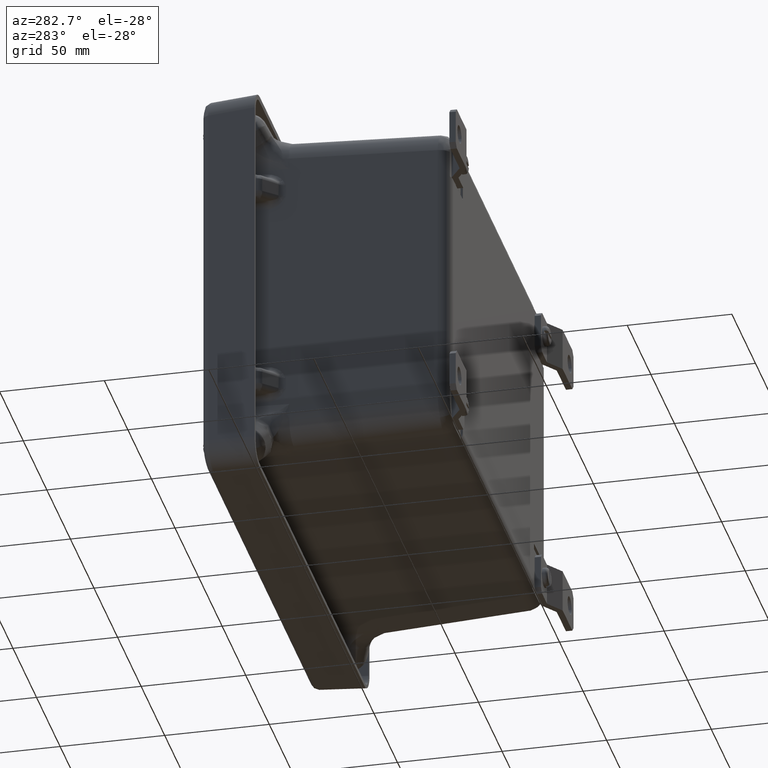
[diagram: clean part render]
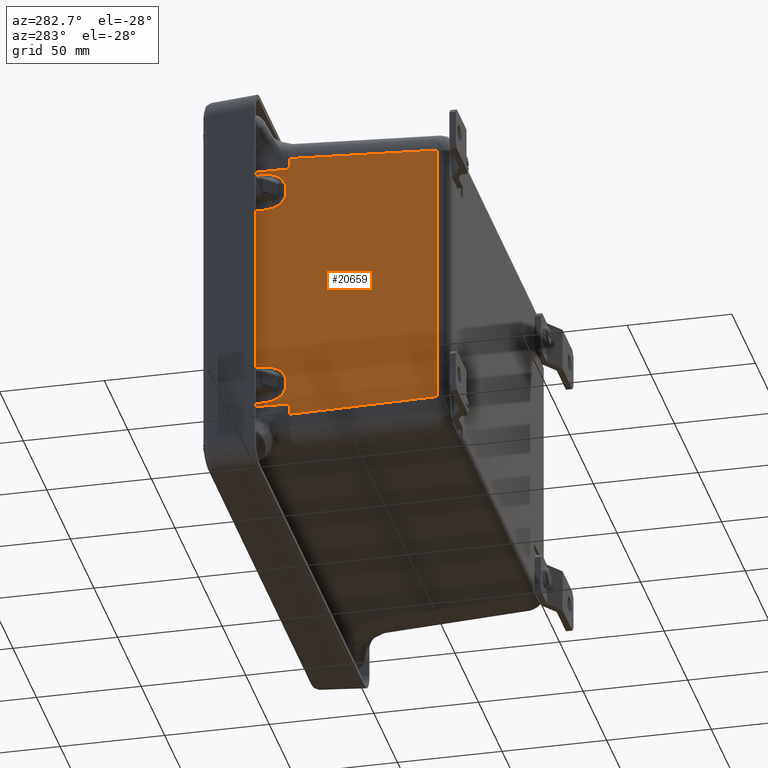
[diagram: same view with one face highlighted and labeled with its STEP entity id]
A machine part, auxiliary view. The second image highlights one B-rep face of the part: STEP entity #20659.
In plain terms, the highlighted planar face has unit normal (-0.9994, -0.0349, 0).
Its self-contained STEP definition (entity closure, byte-faithful):
#191 = VERTEX_POINT ( 'NONE', #25986 ) ;
#384 = CARTESIAN_POINT ( 'NONE',  ( 0.008896128284573071400, -0.4160616423571129000, -5.555433014897837500 ) ) ;
#500 = EDGE_CURVE ( 'NONE', #31153, #34314, #21081, .T. ) ;
#523 =( BOUNDED_CURVE ( )  B_SPLINE_CURVE ( 3, ( #17245, #40740, #27400, #7231 ),
 .UNSPECIFIED., .F., .F. ) 
 B_SPLINE_CURVE_WITH_KNOTS ( ( 4, 4 ),
 ( 4.714053910585492200, 5.848952684293952800 ),
 .UNSPECIFIED. ) 
 CURVE ( )  GEOMETRIC_REPRESENTATION_ITEM ( )  RATIONAL_B_SPLINE_CURVE ( ( 1.000000000000000000, 0.8955164184811441600, 0.8955164184811441600, 1.000000000000000000 ) ) 
 REPRESENTATION_ITEM ( '' )  );
#669 = CARTESIAN_POINT ( 'NONE',  ( 0.02475139680791936500, -0.8700971276602966800, -5.627992590510637600 ) ) ;
#1256 = ORIENTED_EDGE ( 'NONE', *, *, #21419, .T. ) ;
#1509 = VERTEX_POINT ( 'NONE', #5371 ) ;
#1515 = CARTESIAN_POINT ( 'NONE',  ( 0.02032300263744073200, -0.7432845105578743700, -4.974388753529691300 ) ) ;
#2336 = CARTESIAN_POINT ( 'NONE',  ( 0.002706743237433609800, -0.2388208444816546600, 0.03847492341359624200 ) ) ;
#2733 = CARTESIAN_POINT ( 'NONE',  ( 0.02032300263744047200, -0.7432845105578732600, -5.399271799643115900 ) ) ;
#3170 = LINE ( 'NONE', #36391, #29996 ) ;
#3396 = CARTESIAN_POINT ( 'NONE',  ( 0.02475139680792195000, -0.8700971276602989000, -0.7400679626621691200 ) ) ;
#3526 = CARTESIAN_POINT ( 'NONE',  ( 0.002706743237430727200, -0.2388208444816546600, -5.561622399944978300 ) ) ;
#3535 = CARTESIAN_POINT ( 'NONE',  ( 0.002706743237433609800, -0.2388208444816546600, 0.03847492341359624200 ) ) ;
#3678 = EDGE_CURVE ( 'NONE', #35844, #21021, #7930, .T. ) ;
#3756 = ORIENTED_EDGE ( 'NONE', *, *, #15539, .T. ) ;
#4032 = CARTESIAN_POINT ( 'NONE',  ( 0.02469801068638390100, -0.8685683491622170300, -5.707374561630877500 ) ) ;
#5039 = CARTESIAN_POINT ( 'NONE',  ( 0.1213395526498897800, -3.636020022480598100, 0.03847492341359618600 ) ) ;
#5259 = CARTESIAN_POINT ( 'NONE',  ( 0.02107618680829036200, -0.7648528832429485300, -1.002940811970435700 ) ) ;
#5308 = EDGE_CURVE ( 'NONE', #191, #24193, #26730, .T. ) ;
#5365 = EDGE_CURVE ( 'NONE', #41193, #42997, #8739, .T. ) ;
#5371 = CARTESIAN_POINT ( 'NONE',  ( 0.02475139680791936500, -0.8700971276602966800, -5.627992590510637600 ) ) ;
#5474 = ORIENTED_EDGE ( 'NONE', *, *, #500, .T. ) ;
#5606 = LINE ( 'NONE', #34758, #30341 ) ;
#5720 = CARTESIAN_POINT ( 'NONE',  ( 0.02465044137278365300, -0.8672061422493908500, -0.5894322352925220900 ) ) ;
#6309 = ORIENTED_EDGE ( 'NONE', *, *, #19502, .T. ) ;
#6603 = EDGE_CURVE ( 'NONE', #31081, #41801, #30837, .T. ) ;
#6670 = CARTESIAN_POINT ( 'NONE',  ( 0.008896128284573071400, -0.4160616423571129000, -5.555433014897837500 ) ) ;
#6708 = VECTOR ( 'NONE', #8072, 39.37007874015748900 ) ;
#6958 = CARTESIAN_POINT ( 'NONE',  ( 0.02166939041892232400, -0.7818400120853499200, -1.322914172709580800 ) ) ;
#7231 = CARTESIAN_POINT ( 'NONE',  ( 0.02032300263744286900, -0.7432845105578765900, -0.9687887535296921800 ) ) ;
#7251 = VERTEX_POINT ( 'NONE', #3526 ) ;
#7422 = CARTESIAN_POINT ( 'NONE',  ( 0.02465044137249199400, -0.8672061422411149200, -5.778628318314728700 ) ) ;
#7568 = DIRECTION ( 'NONE',  ( -0.03487826274237466900, 0.9987827659587182900, 0.03487826274237469700 ) ) ;
#7621 = CARTESIAN_POINT ( 'NONE',  ( 0.02032300263744047200, -0.7432845105578732600, -5.399271799643115900 ) ) ;
#7736 = DIRECTION ( 'NONE',  ( 0.03487826274237466900, -0.9987827659587182900, -0.03487826274237469700 ) ) ;
#7930 = B_SPLINE_CURVE_WITH_KNOTS ( 'NONE', 3,
 ( #27750, #24375, #34200, #7621 ),
 .UNSPECIFIED., .F., .F.,
 ( 4, 4 ),
 ( -1.595968977903273800E-005, 0.003057915851827636200 ),
 .UNSPECIFIED. ) ;
#8072 = DIRECTION ( 'NONE',  ( 0.03487826274237466900, -0.9987827659587182900, -0.03487826274237469700 ) ) ;
#8678 = CARTESIAN_POINT ( 'NONE',  ( 0.02225828508003414500, -0.7987037487579015100, -1.076187188614658800 ) ) ;
#8739 =( BOUNDED_CURVE ( )  B_SPLINE_CURVE ( 3, ( #29927, #13504, #33282, #40326 ),
 .UNSPECIFIED., .F., .F. ) 
 B_SPLINE_CURVE_WITH_KNOTS ( ( 4, 4 ),
 ( 3.575825276475431900, 4.710724050183889000 ),
 .UNSPECIFIED. ) 
 CURVE ( )  GEOMETRIC_REPRESENTATION_ITEM ( )  RATIONAL_B_SPLINE_CURVE ( ( 1.000000000000000000, 0.8955164184811448300, 0.8955164184811448300, 1.000000000000000000 ) ) 
 REPRESENTATION_ITEM ( '' )  );
#8833 =( BOUNDED_CURVE ( )  B_SPLINE_CURVE ( 3, ( #11266, #34717, #14636, #38110 ),
 .UNSPECIFIED., .F., .F. ) 
 B_SPLINE_CURVE_WITH_KNOTS ( ( 4, 4 ),
 ( 4.714053910585491300, 5.848952684293958100 ),
 .UNSPECIFIED. ) 
 CURVE ( )  GEOMETRIC_REPRESENTATION_ITEM ( )  RATIONAL_B_SPLINE_CURVE ( ( 1.000000000000000000, 0.8955164184811430500, 0.8955164184811430500, 1.000000000000000000 ) ) 
 REPRESENTATION_ITEM ( '' )  );
#8904 = LINE ( 'NONE', #16436, #35682 ) ;
#9144 = CARTESIAN_POINT ( 'NONE',  ( 0.02469801068667803700, -0.8685683491705660200, -0.6606859919763731200 ) ) ;
#9198 = ORIENTED_EDGE ( 'NONE', *, *, #32094, .T. ) ;
#9728 = ORIENTED_EDGE ( 'NONE', *, *, #12839, .T. ) ;
#10626 = CARTESIAN_POINT ( 'NONE',  ( 0.008896128284575605800, -0.4160616423571156200, -0.8126275382749695900 ) ) ;
#10793 = EDGE_LOOP ( 'NONE', ( #3756, #16520, #37812, #34306, #5474, #9198, #1256, #6309, #42064, #39446, #36495, #11830, #25223, #31078, #39088, #20465, #16950, #16252, #9728, #27529, #16295, #16822, #14240, #14372 ) ) ;
#10838 = CARTESIAN_POINT ( 'NONE',  ( 0.02460854373689490300, -0.8660063509362016000, -5.841753780227199000 ) ) ;
#11080 = LINE ( 'NONE', #17305, #18936 ) ;
#11100 = VECTOR ( 'NONE', #7568, 39.37007874015748100 ) ;
#11266 = CARTESIAN_POINT ( 'NONE',  ( 0.008896128284573461700, -0.4160616423571131800, -4.818227538274968900 ) ) ;
#11472 = LINE ( 'NONE', #41580, #19320 ) ;
#11482 = EDGE_CURVE ( 'NONE', #40161, #35844, #36419, .T. ) ;
#11750 = CARTESIAN_POINT ( 'NONE',  ( 0.02032300263744073200, -0.7432845105578743700, -4.974388753529691300 ) ) ;
#11830 = ORIENTED_EDGE ( 'NONE', *, *, #6603, .T. ) ;
#11845 = DIRECTION ( 'NONE',  ( 5.147954761930143900E-016, -3.079610751843078400E-033, 1.000000000000000000 ) ) ;
#11974 = CARTESIAN_POINT ( 'NONE',  ( 0.02032300263744047200, -0.7432845105578732600, -5.399271799643115900 ) ) ;
#11982 = VERTEX_POINT ( 'NONE', #21706 ) ;
#12082 =( BOUNDED_CURVE ( )  B_SPLINE_CURVE ( 3, ( #2733, #20070, #26832, #6670 ),
 .UNSPECIFIED., .F., .F. ) 
 B_SPLINE_CURVE_WITH_KNOTS ( ( 4, 4 ),
 ( 3.575825276475431900, 4.710724050183889000 ),
 .UNSPECIFIED. ) 
 CURVE ( )  GEOMETRIC_REPRESENTATION_ITEM ( )  RATIONAL_B_SPLINE_CURVE ( ( 1.000000000000000000, 0.8955164184811448300, 0.8955164184811448300, 1.000000000000000000 ) ) 
 REPRESENTATION_ITEM ( '' )  );
#12326 = DIRECTION ( 'NONE',  ( -5.334230184623298900E-016, 5.334230184623320600E-016, -1.000000000000000000 ) ) ;
#12507 = DIRECTION ( 'NONE',  ( -5.147954761930143900E-016, 3.079610751843078400E-033, -1.000000000000000000 ) ) ;
#12545 = CARTESIAN_POINT ( 'NONE',  ( 0.02475139680792195000, -0.8700971276602989000, -0.7400679626621691200 ) ) ;
#12594 = CARTESIAN_POINT ( 'NONE',  ( 0.02225828508003396500, -0.7987037487579015100, -1.413960217754484100 ) ) ;
#12839 = EDGE_CURVE ( 'NONE', #22255, #40161, #39357, .T. ) ;
#13157 = EDGE_CURVE ( 'NONE', #32511, #31153, #21103, .T. ) ;
#13504 = CARTESIAN_POINT ( 'NONE',  ( 0.01827398750920911800, -0.6846083943652571100, -1.486581458547199000 ) ) ;
#13773 = CARTESIAN_POINT ( 'NONE',  ( 0.02225828508003403400, -0.7987037487579015100, -1.286273364558148300 ) ) ;
#14240 = ORIENTED_EDGE ( 'NONE', *, *, #14945, .T. ) ;
#14372 = ORIENTED_EDGE ( 'NONE', *, *, #33620, .T. ) ;
#14428 = CARTESIAN_POINT ( 'NONE',  ( 0.002706743237432789300, -0.2388208444816546600, -1.556022399944980500 ) ) ;
#14636 = CARTESIAN_POINT ( 'NONE',  ( 0.01827398750920736600, -0.6846083943652571100, -4.881479094625607500 ) ) ;
#14945 = EDGE_CURVE ( 'NONE', #26183, #7251, #8904, .T. ) ;
#15129 = CARTESIAN_POINT ( 'NONE',  ( 0.02167012250086788900, -0.7818609761694171900, -5.045191930332284100 ) ) ;
#15539 = EDGE_CURVE ( 'NONE', #28102, #1509, #26515, .T. ) ;
#16205 = FACE_OUTER_BOUND ( 'NONE', #10793, .T. ) ;
#16252 = ORIENTED_EDGE ( 'NONE', *, *, #20928, .T. ) ;
#16295 = ORIENTED_EDGE ( 'NONE', *, *, #3678, .T. ) ;
#16436 = CARTESIAN_POINT ( 'NONE',  ( 0.002858925013699475200, -0.2431787603719305100, -5.561470218168709700 ) ) ;
#16520 = ORIENTED_EDGE ( 'NONE', *, *, #41603, .T. ) ;
#16822 = ORIENTED_EDGE ( 'NONE', *, *, #20775, .T. ) ;
#16950 = ORIENTED_EDGE ( 'NONE', *, *, #35756, .T. ) ;
#17118 = CARTESIAN_POINT ( 'NONE',  ( 0.02107618191543438400, -0.7648527431298906000, -1.359519963061915500 ) ) ;
#17245 = CARTESIAN_POINT ( 'NONE',  ( 0.008896128284575605800, -0.4160616423571156200, -0.8126275382749695900 ) ) ;
#17305 = CARTESIAN_POINT ( 'NONE',  ( 0.002858925013701536900, -0.2431787603719305100, -1.555870218168711400 ) ) ;
#18136 = LINE ( 'NONE', #2336, #24961 ) ;
#18214 = CARTESIAN_POINT ( 'NONE',  ( 0.002706743237430698500, -0.2388208444816546600, -5.618861396023924600 ) ) ;
#18326 = CARTESIAN_POINT ( 'NONE',  ( 0.02225828508003189300, -0.7987037487578992900, -5.291873364558147100 ) ) ;
#18936 = VECTOR ( 'NONE', #20707, 39.37007874015748900 ) ;
#19320 = VECTOR ( 'NONE', #31588, 39.37007874015748900 ) ;
#19502 = EDGE_CURVE ( 'NONE', #11982, #191, #34656, .T. ) ;
#20070 = CARTESIAN_POINT ( 'NONE',  ( 0.01827398750920700100, -0.6846083943652550000, -5.492181458547198900 ) ) ;
#20115 = CARTESIAN_POINT ( 'NONE',  ( 0.1213395526498894000, -3.636020022480597200, -0.6230377818586001500 ) ) ;
#20122 = CARTESIAN_POINT ( 'NONE',  ( 0.1213395526498867900, -3.636020022480597200, -5.745022771314207700 ) ) ;
#20285 = EDGE_CURVE ( 'NONE', #41801, #41193, #41943, .T. ) ;
#20430 = VERTEX_POINT ( 'NONE', #41782 ) ;
#20465 = ORIENTED_EDGE ( 'NONE', *, *, #24409, .T. ) ;
#20659 = ADVANCED_FACE ( 'NONE', ( #16205 ), #32251, .T. ) ;
#20707 = DIRECTION ( 'NONE',  ( -0.03487826274237471000, 0.9987827659587182900, -0.03487826274237470400 ) ) ;
#20775 = EDGE_CURVE ( 'NONE', #21021, #26183, #12082, .T. ) ;
#20811 = CARTESIAN_POINT ( 'NONE',  ( 0.02472463822023977100, -0.8693308619660111700, -5.667683539713421800 ) ) ;
#20928 = EDGE_CURVE ( 'NONE', #21673, #22255, #8833, .T. ) ;
#21021 = VERTEX_POINT ( 'NONE', #11974 ) ;
#21081 = LINE ( 'NONE', #31077, #11100 ) ;
#21103 = LINE ( 'NONE', #5039, #25316 ) ;
#21129 = CARTESIAN_POINT ( 'NONE',  ( 0.01357492752564343400, -0.5500449224843062500, -4.822906337516038800 ) ) ;
#21205 = VERTEX_POINT ( 'NONE', #3396 ) ;
#21351 = CARTESIAN_POINT ( 'NONE',  ( 0.02460854373689490300, -0.8660063509362016000, -5.841753780227199000 ) ) ;
#21397 = CARTESIAN_POINT ( 'NONE',  ( 0.002706743237431113100, -0.2388208444816546600, -4.812038153227827100 ) ) ;
#21419 = EDGE_CURVE ( 'NONE', #21205, #11982, #11472, .T. ) ;
#21447 = CARTESIAN_POINT ( 'NONE',  ( 0.01357492752564557400, -0.5500449224843083600, -0.8173063375160395400 ) ) ;
#21502 = EDGE_CURVE ( 'NONE', #20430, #31081, #22535, .T. ) ;
#21673 = VERTEX_POINT ( 'NONE', #40514 ) ;
#21706 = CARTESIAN_POINT ( 'NONE',  ( 0.002706743237433205200, -0.2388208444816546600, -0.7491991571488819700 ) ) ;
#21804 = CARTESIAN_POINT ( 'NONE',  ( 0.02225828508003403400, -0.7987037487579015100, -1.286273364558148300 ) ) ;
#22125 = CARTESIAN_POINT ( 'NONE',  ( -0.005730565533846034200, 0.002792066518874055400, 0.03847492341359624200 ) ) ;
#22255 = VERTEX_POINT ( 'NONE', #1515 ) ;
#22271 = DIRECTION ( 'NONE',  ( 0.03489949670250104600, -0.9993908270190957600, -0.0000000000000000000 ) ) ;
#22349 = CARTESIAN_POINT ( 'NONE',  ( 0.02462945194939388300, -0.8666050838049370600, -0.5578695261599010400 ) ) ;
#22535 = B_SPLINE_CURVE_WITH_KNOTS ( 'NONE', 3,
 ( #25431, #5259, #28794, #8678 ),
 .UNSPECIFIED., .F., .F.,
 ( 4, 4 ),
 ( 0.0000000000000000000, 0.003070054265957642200 ),
 .UNSPECIFIED. ) ;
#22669 = VECTOR ( 'NONE', #7736, 39.37007874015748900 ) ;
#23168 = DIRECTION ( 'NONE',  ( 0.03487826274237471000, -0.9987827659587182900, 0.03487826274237470400 ) ) ;
#24193 = VERTEX_POINT ( 'NONE', #10626 ) ;
#24375 = CARTESIAN_POINT ( 'NONE',  ( 0.02166939041893043900, -0.7818400120856412400, -5.328514172709715200 ) ) ;
#24409 = EDGE_CURVE ( 'NONE', #25865, #41702, #18136, .T. ) ;
#24697 = VECTOR ( 'NONE', #40393, 39.37007874015748100 ) ;
#24961 = VECTOR ( 'NONE', #12507, 39.37007874015748100 ) ;
#24984 = B_SPLINE_CURVE_WITH_KNOTS ( 'NONE', 3,
 ( #669, #20811, #4032, #27565, #7422, #30931, #10838 ),
 .UNSPECIFIED., .F., .F.,
 ( 4, 3, 4 ),
 ( 0.0000000000000000000, 0.003025014591542555700, 0.005430529583900691600 ),
 .UNSPECIFIED. ) ;
#25223 = ORIENTED_EDGE ( 'NONE', *, *, #20285, .T. ) ;
#25316 = VECTOR ( 'NONE', #11845, 39.37007874015748100 ) ;
#25431 = CARTESIAN_POINT ( 'NONE',  ( 0.02032300263744286900, -0.7432845105578765900, -0.9687887535296921800 ) ) ;
#25681 = CARTESIAN_POINT ( 'NONE',  ( 0.02225828508003182400, -0.7987037487578992900, -5.419560217754482600 ) ) ;
#25865 = VERTEX_POINT ( 'NONE', #14428 ) ;
#25986 = CARTESIAN_POINT ( 'NONE',  ( 0.002706743237433175300, -0.2388208444816546600, -0.8064381532278270800 ) ) ;
#26183 = VERTEX_POINT ( 'NONE', #384 ) ;
#26515 = LINE ( 'NONE', #32324, #43304 ) ;
#26730 = LINE ( 'NONE', #21447, #6708 ) ;
#26832 = CARTESIAN_POINT ( 'NONE',  ( 0.01402062259147303200, -0.5628079592763587400, -5.550308520590937700 ) ) ;
#27400 = CARTESIAN_POINT ( 'NONE',  ( 0.01827398750920948600, -0.6846083943652581100, -0.8758790946256088700 ) ) ;
#27497 = VECTOR ( 'NONE', #12326, 39.37007874015748100 ) ;
#27529 = ORIENTED_EDGE ( 'NONE', *, *, #11482, .T. ) ;
#27565 = CARTESIAN_POINT ( 'NONE',  ( 0.02467151274243501200, -0.8678095473278207800, -5.747065654402295100 ) ) ;
#27750 = CARTESIAN_POINT ( 'NONE',  ( 0.02225828508003189300, -0.7987037487578992900, -5.291873364558147100 ) ) ;
#28102 = VERTEX_POINT ( 'NONE', #18214 ) ;
#28794 = CARTESIAN_POINT ( 'NONE',  ( 0.02167012250085942000, -0.7818609761691194300, -1.039591930332422800 ) ) ;
#29244 = CARTESIAN_POINT ( 'NONE',  ( 0.02467151274287278700, -0.8678095473402819300, -0.6209948994221776700 ) ) ;
#29791 = VECTOR ( 'NONE', #36034, 39.37007874015748100 ) ;
#29927 = CARTESIAN_POINT ( 'NONE',  ( 0.02032300263744262300, -0.7432845105578760300, -1.393671799643116000 ) ) ;
#29996 = VECTOR ( 'NONE', #23168, 39.37007874015748100 ) ;
#30341 = VECTOR ( 'NONE', #41520, 39.37007874015748100 ) ;
#30837 = LINE ( 'NONE', #12594, #29791 ) ;
#30931 = CARTESIAN_POINT ( 'NONE',  ( 0.02462945194924719500, -0.8666050838008141400, -5.810191027230128000 ) ) ;
#31077 = CARTESIAN_POINT ( 'NONE',  ( -0.006380711313203655600, 0.02140980572736956800, -0.4953175178955069300 ) ) ;
#31078 = ORIENTED_EDGE ( 'NONE', *, *, #5365, .T. ) ;
#31081 = VERTEX_POINT ( 'NONE', #33152 ) ;
#31153 = VERTEX_POINT ( 'NONE', #20115 ) ;
#31426 = CARTESIAN_POINT ( 'NONE',  ( 0.02032300263744262300, -0.7432845105578760300, -1.393671799643116000 ) ) ;
#31588 = DIRECTION ( 'NONE',  ( -0.03489585077468930500, 0.9992864213068273200, -0.01445433466142386500 ) ) ;
#31619 = LINE ( 'NONE', #21129, #22669 ) ;
#31845 = EDGE_CURVE ( 'NONE', #24193, #20430, #523, .T. ) ;
#32094 = EDGE_CURVE ( 'NONE', #34314, #21205, #33082, .T. ) ;
#32251 = PLANE ( 'NONE',  #38965 ) ;
#32324 = CARTESIAN_POINT ( 'NONE',  ( -0.005855298954289067100, 0.006363964339442059300, -5.615314882026503100 ) ) ;
#32511 = VERTEX_POINT ( 'NONE', #20122 ) ;
#32605 = CARTESIAN_POINT ( 'NONE',  ( 0.02472463822038883900, -0.8693308619702071500, -0.7003770136766063200 ) ) ;
#33082 = B_SPLINE_CURVE_WITH_KNOTS ( 'NONE', 3,
 ( #39234, #22349, #5720, #29244, #9144, #32605, #12545 ),
 .UNSPECIFIED., .F., .F.,
 ( 4, 3, 4 ),
 ( 0.0000000000000000000, 0.002405515012902859800, 0.005430529592906853700 ),
 .UNSPECIFIED. ) ;
#33152 = CARTESIAN_POINT ( 'NONE',  ( 0.02225828508003414500, -0.7987037487579015100, -1.076187188614658800 ) ) ;
#33154 = DIRECTION ( 'NONE',  ( -0.03487826274237471000, 0.9987827659587182900, -0.03487826274237470400 ) ) ;
#33282 = CARTESIAN_POINT ( 'NONE',  ( 0.01402062259147515200, -0.5628079592763610700, -1.544708520590937900 ) ) ;
#33620 = EDGE_CURVE ( 'NONE', #7251, #28102, #5606, .T. ) ;
#34200 = CARTESIAN_POINT ( 'NONE',  ( 0.02107618191543224000, -0.7648527431298884900, -5.365119963061915500 ) ) ;
#34306 = ORIENTED_EDGE ( 'NONE', *, *, #13157, .T. ) ;
#34314 = VERTEX_POINT ( 'NONE', #36291 ) ;
#34444 = CARTESIAN_POINT ( 'NONE',  ( 0.008896128284575212000, -0.4160616423571150700, -1.549833014897837600 ) ) ;
#34656 = LINE ( 'NONE', #3535, #24697 ) ;
#34717 = CARTESIAN_POINT ( 'NONE',  ( 0.01402062259147343300, -0.5628079592763600700, -4.823352032581867700 ) ) ;
#34758 = CARTESIAN_POINT ( 'NONE',  ( 0.002706743237433609800, -0.2388208444816546600, 0.03847492341359624200 ) ) ;
#35205 = CARTESIAN_POINT ( 'NONE',  ( 0.02107618680828822100, -0.7648528832429465400, -5.008540811970434900 ) ) ;
#35682 = VECTOR ( 'NONE', #33154, 39.37007874015748900 ) ;
#35697 = DIRECTION ( 'NONE',  ( 0.03489585077468929100, -0.9992864213068273200, -0.01445433466142390100 ) ) ;
#35756 = EDGE_CURVE ( 'NONE', #41702, #21673, #31619, .T. ) ;
#35844 = VERTEX_POINT ( 'NONE', #18326 ) ;
#36034 = DIRECTION ( 'NONE',  ( -5.334230184623298900E-016, 5.334230184623318600E-016, -1.000000000000000000 ) ) ;
#36291 = CARTESIAN_POINT ( 'NONE',  ( 0.02460854373689772000, -0.8660063509362038200, -0.5263067729456083500 ) ) ;
#36391 = CARTESIAN_POINT ( 'NONE',  ( 0.001459600089186847900, -0.2031073374084947400, -5.864902723874906500 ) ) ;
#36419 = LINE ( 'NONE', #25681, #27497 ) ;
#36495 = ORIENTED_EDGE ( 'NONE', *, *, #21502, .T. ) ;
#37015 = EDGE_CURVE ( 'NONE', #42997, #25865, #11080, .T. ) ;
#37083 = CARTESIAN_POINT ( 'NONE',  ( 0.02225828508003200500, -0.7987037487578992900, -5.081787188614657500 ) ) ;
#37444 = VERTEX_POINT ( 'NONE', #21351 ) ;
#37812 = ORIENTED_EDGE ( 'NONE', *, *, #38001, .T. ) ;
#38001 = EDGE_CURVE ( 'NONE', #37444, #32511, #3170, .T. ) ;
#38110 = CARTESIAN_POINT ( 'NONE',  ( 0.02032300263744073200, -0.7432845105578743700, -4.974388753529691300 ) ) ;
#38603 = CARTESIAN_POINT ( 'NONE',  ( 0.02225828508003200500, -0.7987037487578992900, -5.081787188614657500 ) ) ;
#38965 = AXIS2_PLACEMENT_3D ( 'NONE', #22125, #42387, #22271 ) ;
#39088 = ORIENTED_EDGE ( 'NONE', *, *, #37015, .T. ) ;
#39234 = CARTESIAN_POINT ( 'NONE',  ( 0.02460854373689772000, -0.8660063509362038200, -0.5263067729456083500 ) ) ;
#39357 = B_SPLINE_CURVE_WITH_KNOTS ( 'NONE', 3,
 ( #11750, #35205, #15129, #38603 ),
 .UNSPECIFIED., .F., .F.,
 ( 4, 4 ),
 ( 0.0000000000000000000, 0.003070054265957641800 ),
 .UNSPECIFIED. ) ;
#39446 = ORIENTED_EDGE ( 'NONE', *, *, #31845, .T. ) ;
#40161 = VERTEX_POINT ( 'NONE', #37083 ) ;
#40326 = CARTESIAN_POINT ( 'NONE',  ( 0.008896128284575212000, -0.4160616423571150700, -1.549833014897837600 ) ) ;
#40393 = DIRECTION ( 'NONE',  ( -5.147954761930143900E-016, 3.079610751843078400E-033, -1.000000000000000000 ) ) ;
#40514 = CARTESIAN_POINT ( 'NONE',  ( 0.008896128284573461700, -0.4160616423571131800, -4.818227538274968900 ) ) ;
#40605 = CARTESIAN_POINT ( 'NONE',  ( 0.02032300263744262300, -0.7432845105578760300, -1.393671799643116000 ) ) ;
#40740 = CARTESIAN_POINT ( 'NONE',  ( 0.01402062259147556500, -0.5628079592763617400, -0.8177520325818694600 ) ) ;
#41193 = VERTEX_POINT ( 'NONE', #31426 ) ;
#41520 = DIRECTION ( 'NONE',  ( -5.147954761930143900E-016, 3.079610751843078400E-033, -1.000000000000000000 ) ) ;
#41580 = CARTESIAN_POINT ( 'NONE',  ( -0.005855298954286563900, 0.006363964339442059300, -0.7527456711463029700 ) ) ;
#41603 = EDGE_CURVE ( 'NONE', #1509, #37444, #24984, .T. ) ;
#41702 = VERTEX_POINT ( 'NONE', #21397 ) ;
#41782 = CARTESIAN_POINT ( 'NONE',  ( 0.02032300263744286900, -0.7432845105578765900, -0.9687887535296921800 ) ) ;
#41801 = VERTEX_POINT ( 'NONE', #21804 ) ;
#41943 = B_SPLINE_CURVE_WITH_KNOTS ( 'NONE', 3,
 ( #13773, #6958, #17118, #40605 ),
 .UNSPECIFIED., .F., .F.,
 ( 4, 4 ),
 ( -1.595968977905350400E-005, 0.003057915851827576800 ),
 .UNSPECIFIED. ) ;
#42064 = ORIENTED_EDGE ( 'NONE', *, *, #5308, .T. ) ;
#42387 = DIRECTION ( 'NONE',  ( -0.9993908270190957600, -0.03489949670250104600, 5.144818766982259200E-016 ) ) ;
#42997 = VERTEX_POINT ( 'NONE', #34444 ) ;
#43304 = VECTOR ( 'NONE', #35697, 39.37007874015748900 ) ;